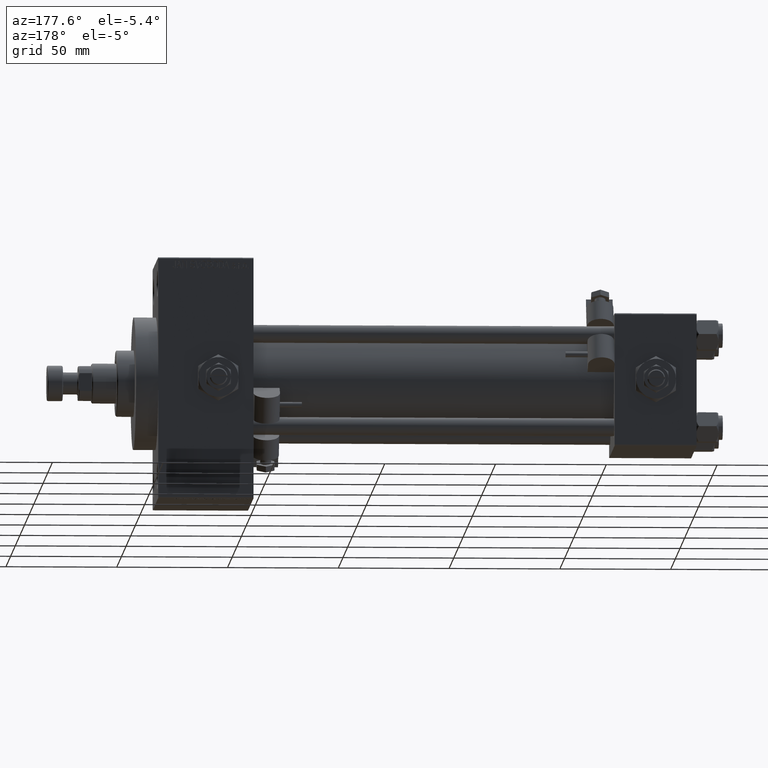
[diagram: clean part render]
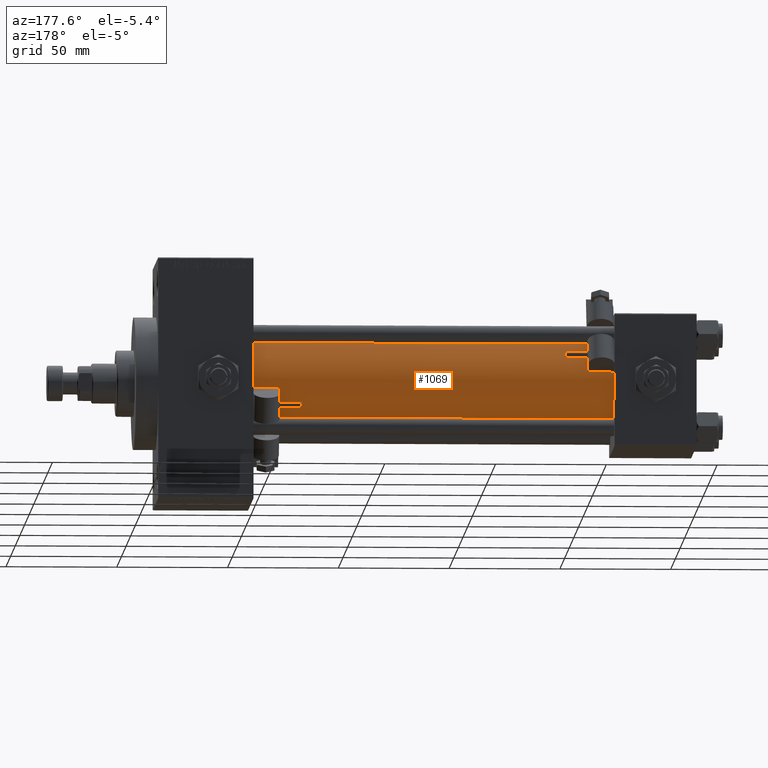
[diagram: same view with one face highlighted and labeled with its STEP entity id]
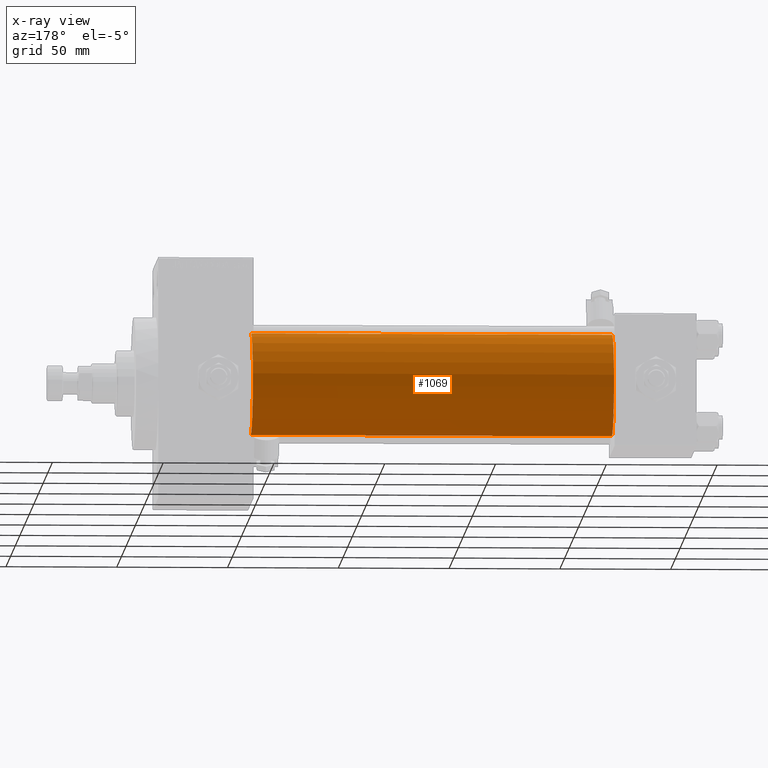
[diagram: x-ray of the same camera — body ghosted, the highlighted face saturated]
A machine part, auxiliary view. The second image highlights one B-rep face of the part: STEP entity #1069.
The next image is the same camera in x-ray: the body ghosted, the highlighted face saturated — about 0% of this face is hidden behind the body in this view.
In plain terms, the highlighted cylindrical surface (partial cylindrical patch) has radius 23 mm, axis along (-1, -0, -0).
Its self-contained STEP definition (entity closure, byte-faithful):
#827 = DIRECTION ( 'NONE',  ( 0.000000000000000000, 0.000000000000000000, 1.000000000000000000 ) ) ;
#1069 = ADVANCED_FACE ( 'NONE', ( #39725 ), #43836, .T. ) ;
#5266 = EDGE_CURVE ( 'NONE', #18746, #42409, #20126, .T. ) ;
#6171 = VECTOR ( 'NONE', #36177, 1000.000000000000000 ) ;
#7090 = EDGE_LOOP ( 'NONE', ( #25127, #27298, #24989, #11545 ) ) ;
#9678 = CARTESIAN_POINT ( 'NONE',  ( 200.0000000000000000, 2.146024240737016609E-16, -23.00000000000000000 ) ) ;
#11082 = EDGE_CURVE ( 'NONE', #13587, #21787, #35756, .T. ) ;
#11370 = CARTESIAN_POINT ( 'NONE',  ( 200.0000000000000000, 2.146024240737016609E-16, -23.00000000000000000 ) ) ;
#11545 = ORIENTED_EDGE ( 'NONE', *, *, #15113, .F. ) ;
#11974 = LINE ( 'NONE', #43318, #31786 ) ;
#12228 = DIRECTION ( 'NONE',  ( -1.000000000000000000, -0.000000000000000000, -0.000000000000000000 ) ) ;
#13587 = VERTEX_POINT ( 'NONE', #11370 ) ;
#15113 = EDGE_CURVE ( 'NONE', #21787, #42409, #11974, .T. ) ;
#15587 = DIRECTION ( 'NONE',  ( -1.000000000000000000, -0.000000000000000000, -0.000000000000000000 ) ) ;
#18746 = VERTEX_POINT ( 'NONE', #42637 ) ;
#20012 = AXIS2_PLACEMENT_3D ( 'NONE', #35154, #12228, #50793 ) ;
#20126 = CIRCLE ( 'NONE', #48043, 23.00000000000000000 ) ;
#20753 = LINE ( 'NONE', #9678, #6171 ) ;
#21787 = VERTEX_POINT ( 'NONE', #26824 ) ;
#22152 = DIRECTION ( 'NONE',  ( 0.000000000000000000, 0.000000000000000000, -1.000000000000000000 ) ) ;
#24989 = ORIENTED_EDGE ( 'NONE', *, *, #5266, .T. ) ;
#25127 = ORIENTED_EDGE ( 'NONE', *, *, #11082, .F. ) ;
#25888 = AXIS2_PLACEMENT_3D ( 'NONE', #33486, #42182, #22152 ) ;
#26824 = CARTESIAN_POINT ( 'NONE',  ( 200.0000000000000000, -2.602085213965210642E-15, 23.00000000000000000 ) ) ;
#27298 = ORIENTED_EDGE ( 'NONE', *, *, #44458, .T. ) ;
#28066 = CARTESIAN_POINT ( 'NONE',  ( 37.00000000000000711, -2.602085213965210642E-15, 0.000000000000000000 ) ) ;
#28324 = DIRECTION ( 'NONE',  ( 1.000000000000000000, -0.000000000000000000, 0.000000000000000000 ) ) ;
#28784 = CARTESIAN_POINT ( 'NONE',  ( 37.00000000000000711, -2.602085213965210642E-15, 23.00000000000000000 ) ) ;
#31786 = VECTOR ( 'NONE', #15587, 1000.000000000000000 ) ;
#33486 = CARTESIAN_POINT ( 'NONE',  ( 200.0000000000000000, -2.602085213965210642E-15, 0.000000000000000000 ) ) ;
#35154 = CARTESIAN_POINT ( 'NONE',  ( 200.0000000000000000, -2.602085213965210642E-15, 0.000000000000000000 ) ) ;
#35756 = CIRCLE ( 'NONE', #25888, 23.00000000000000000 ) ;
#36177 = DIRECTION ( 'NONE',  ( -1.000000000000000000, -0.000000000000000000, -0.000000000000000000 ) ) ;
#39725 = FACE_OUTER_BOUND ( 'NONE', #7090, .T. ) ;
#42182 = DIRECTION ( 'NONE',  ( 1.000000000000000000, 0.000000000000000000, 0.000000000000000000 ) ) ;
#42409 = VERTEX_POINT ( 'NONE', #28784 ) ;
#42637 = CARTESIAN_POINT ( 'NONE',  ( 37.00000000000000711, 2.146024240737016609E-16, -23.00000000000000000 ) ) ;
#43318 = CARTESIAN_POINT ( 'NONE',  ( 200.0000000000000000, -2.602085213965210642E-15, 23.00000000000000000 ) ) ;
#43836 = CYLINDRICAL_SURFACE ( 'NONE', #20012, 23.00000000000000000 ) ;
#44458 = EDGE_CURVE ( 'NONE', #13587, #18746, #20753, .T. ) ;
#48043 = AXIS2_PLACEMENT_3D ( 'NONE', #28066, #28324, #827 ) ;
#50793 = DIRECTION ( 'NONE',  ( 0.000000000000000000, 0.000000000000000000, 1.000000000000000000 ) ) ;